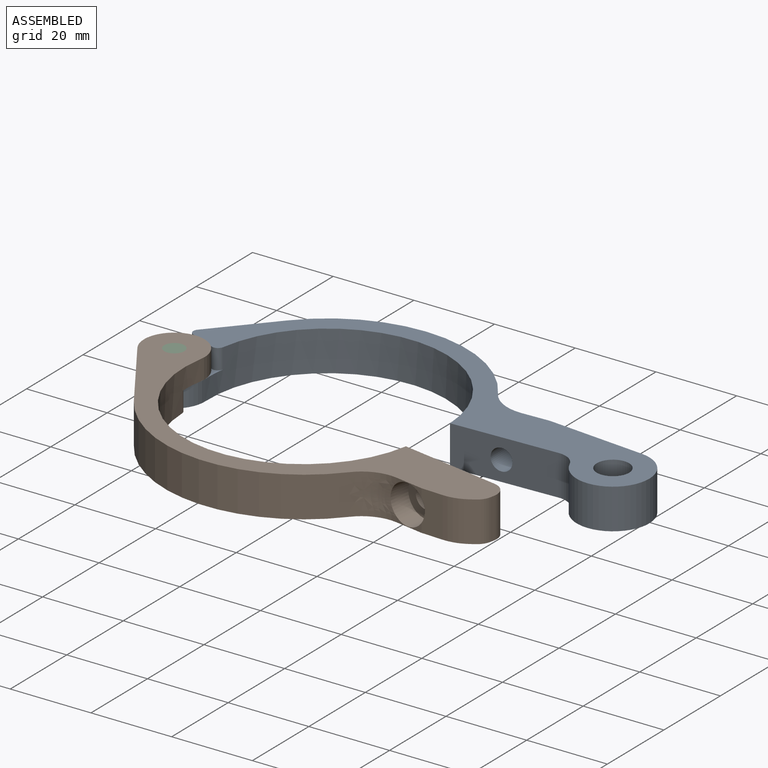
[diagram: assembled view]
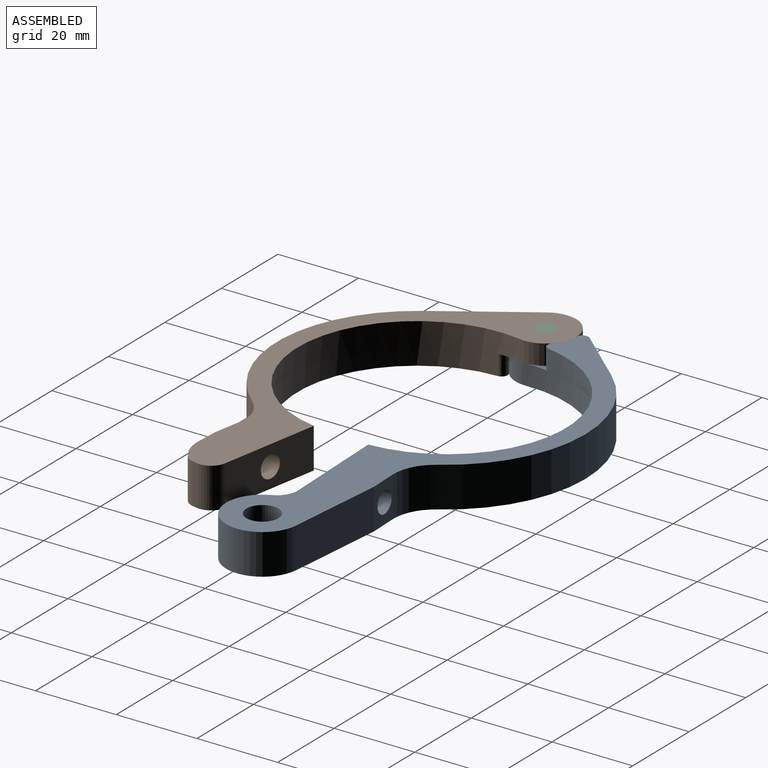
[diagram: assembled view, second angle]
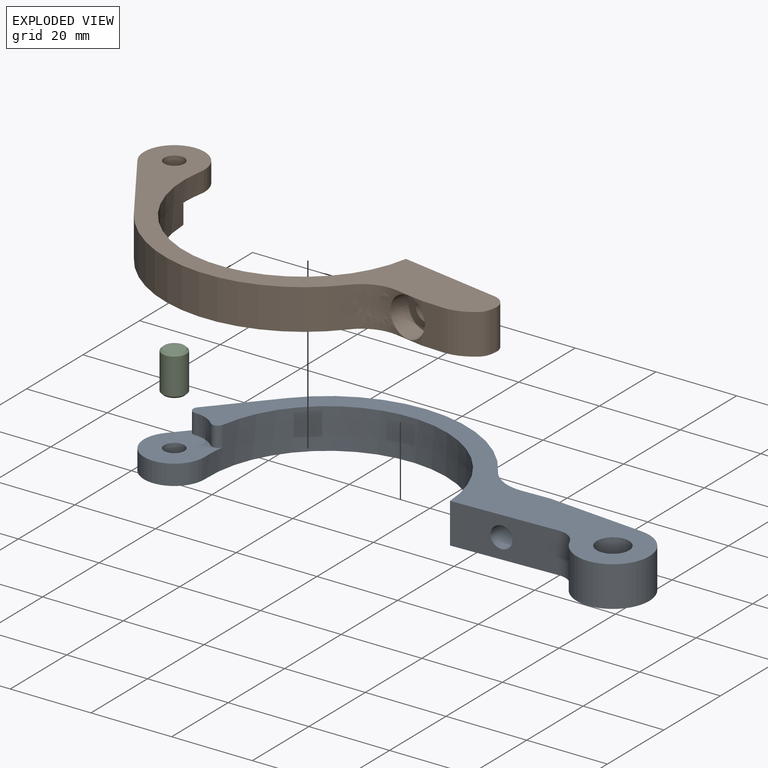
[diagram: exploded view]
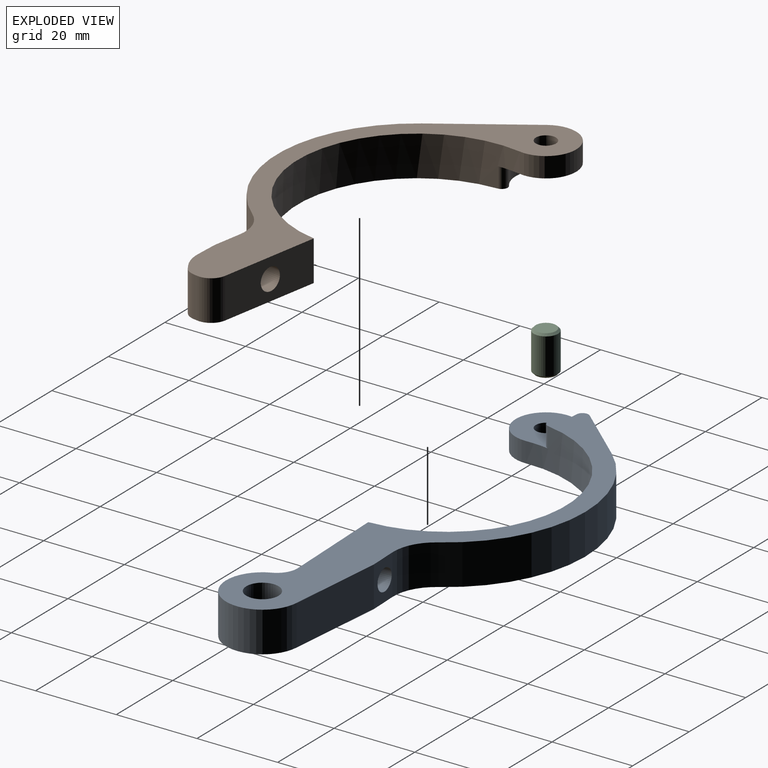
[diagram: exploded view, second angle]
ASSEMBLY  parts=3 mates=2
PART A: 20 faces, bbox 122.6x43.5x10 mm
  f0: plane 18.51x17.5mm, normal (-0.73,0.69,0), area 221.2mm2, adj f1,f4,f6,f12,f13,f16
  f1: cylinder r=7.5mm len=15mm, axis (0,0,-1), area 146.2mm2, adj f0,f2,f12,f16
  f2: cylinder r=29.55mm len=59.1mm, axis (0,0,-1), area 898.2mm2, adj f1,f4,f7,f12,f14,f16
  f3: cylinder r=2.5mm len=5mm, axis (0,0,-1), area 78.5mm2, adj f12,f16
  f4: plane 116.3x43.49mm, normal (0,0,1), area 1047.4mm2, adj f0,f2,f5,f6,f7,f8,f9,f10
  f5: plane 10x6.9mm, normal (0,1,0), area 47mm2, adj f4,f11,f12,f18,f19
  f6: cylinder r=34.58mm len=55.02mm, axis (0,0,-1), area 642.3mm2, adj f0,f4,f12,f19
  f7: plane 26.27x10mm, normal (0,-1,0), area 240.7mm2, adj f2,f4,f8,f12,f18
  f8: cylinder r=5.1mm len=10mm, axis (0,0,-1), area 61.6mm2, adj f4,f7,f9,f12
  f9: cylinder r=9mm len=17.93mm, axis (0,0,-1), area 380.5mm2, adj f4,f8,f12,f17
  f10: cylinder r=4mm len=10mm, axis (0,0,-1), area 251.3mm2, adj f4,f12
  f11: plane 24.08x10mm, normal (0.13,0.99,0), area 242.8mm2, adj f4,f5,f12,f17
  f12: plane 122.55x43.49mm, normal (0,0,-1), area 1211.6mm2, adj f0,f1,f2,f3,f5,f6,f7,f8
  f13: cylinder r=1.5mm len=5mm, axis (0,0,1), area 17.3mm2, adj f0,f4,f15,f16
  f14: cylinder r=1.5mm len=5mm, axis (0,0,1), area 16.5mm2, adj f2,f4,f15,f16
  f15: cylinder r=7.5mm len=5.3mm, axis (0,0,1), area 29.9mm2, adj f4,f13,f14,f16
  f16: plane 17.53x15.58mm, normal (0,0,1), area 164.3mm2, adj f0,f1,f2,f3,f13,f14,f15
  f17: cylinder r=1mm len=10mm, axis (0,0,-1), area 0.1mm2, adj f4,f9,f11,f12
  f18: cylinder r=2.65mm len=12mm, axis (0,1,0), area 199.8mm2, adj f5,f7
  f19: cylinder r=10.5mm len=10mm, axis (0,0,-1), area 109.6mm2, adj f4,f5,f6,f12
PART B: 26 faces, bbox 103.6x42x10.9 mm
  f0: plane 7.19x2.21mm, normal (0,1,0), area 4.6mm2, adj f1,f4,f22,f23
  f1: plane 10x5.41mm, normal (0.13,0.99,0), area 51.2mm2, adj f0,f2,f4,f9,f16,f22
  f2: plane 97.3x34.41mm, normal (0,0,1), area 793.4mm2, adj f1,f3,f5,f6,f9,f10,f11,f12
  f3: plane 25.45x10mm, normal (0,-1,0), area 230.7mm2, adj f2,f4,f5,f15,f20
  f4: plane 103.55x41.99mm, normal (0,0,-1), area 957.7mm2, adj f0,f1,f3,f5,f6,f7,f8,f10
  f5: cylinder r=29.55mm len=59.1mm, axis (0,0,-1), area 898.2mm2, adj f2,f3,f4,f7,f12,f14
  f6: plane 18.51x17.5mm, normal (-0.73,0.69,0), area 221.2mm2, adj f2,f4,f7,f10,f11,f14
  f7: cylinder r=7.5mm len=15mm, axis (0,0,-1), area 146.2mm2, adj f4,f5,f6,f14
  f8: cylinder r=2.5mm len=5mm, axis (0,0,-1), area 78.5mm2, adj f4,f14
  f9: plane 7.19x2.21mm, normal (0,1,0), area 4.6mm2, adj f1,f2,f22,f25
  f10: cylinder r=34.58mm len=55.2mm, axis (0,0,-1), area 645mm2, adj f2,f4,f6,f23,f24,f25
  f11: cylinder r=1.5mm len=5mm, axis (0,0,1), area 17.3mm2, adj f2,f6,f13,f14
  f12: cylinder r=1.5mm len=5mm, axis (0,0,1), area 16.5mm2, adj f2,f5,f13,f14
  f13: cylinder r=7.5mm len=5.3mm, axis (0,0,1), area 29.9mm2, adj f2,f11,f12,f14
  f14: plane 17.53x15.58mm, normal (0,0,1), area 164.3mm2, adj f5,f6,f7,f8,f11,f12,f13
  f15: cylinder r=4mm len=10mm, axis (0,0,1), area 62.8mm2, adj f2,f3,f4,f19
  f16: cylinder r=10mm len=10mm, axis (0,0,1), area 60.2mm2, adj f1,f2,f4,f17
  f17: plane 10x0.88mm, normal (0.67,0.74,0), area 11.8mm2, adj f2,f4,f16,f18
  f18: cylinder r=4mm len=10mm, axis (0,0,1), area 33.6mm2, adj f2,f4,f17,f19
  f19: plane 10x1.05mm, normal (1,0,0), area 10.5mm2, adj f2,f4,f15,f18
  f20: cylinder r=2.75mm len=6.89mm, axis (0,1,0), area 119mm2, adj f3,f21
  f21: plane 9.75x9.75mm, normal (0,1,0), area 50.9mm2, adj f20,f22
  f22: cylinder r=4.88mm len=9.75mm, axis (0,1,0), area 156.2mm2, adj f0,f1,f9,f21,f24
  f23: cylinder r=10mm len=8.68mm, axis (0,0,-1), area 13.8mm2, adj f0,f4,f10,f24
  f24: bspline ~10.05x9.62mm, area 68.6mm2, adj f10,f22,f23,f25
  f25: cylinder r=10mm len=8.68mm, axis (0,0,-1), area 13.8mm2, adj f2,f9,f10,f24
PART C: 5 faces, bbox 10x6x6 mm
  f0: plane 5x5mm, normal (-1,0,0), area 19.6mm2, adj f3
  f1: plane 5x5mm, normal (1,0,0), area 19.6mm2, adj f4
  f2: cylinder r=3mm len=9mm, axis (-1,0,0), area 169.6mm2, adj f3,f4
  f3: cone r=2.5mm half-angle=45deg, axis (1,0,0), area 12.2mm2, adj f0,f2
  f4: cone r=3mm half-angle=45deg, axis (-1,0,0), area 12.2mm2, adj f1,f2
PLACE A rot(axis=(0,0,1),2.1deg) t=(-13.24,-37.33,-37.93)mm
PLACE B rot(axis=(-1,0.09,0),180deg) t=(-13.78,-45.14,-27.93)mm fixed
PLACE C rot(axis=(-0.09,-0.99,-0.09),90.4deg) t=(-50.26,-38.7,-30.86)mm
MATE revolute C.f2 <-> B.f8  axis (0,0,1) through (-50.26,-38.7,-27.93)mm
MATE revolute C.f2 <-> A.f3  axis (0,0,-1) through (-50.26,-38.7,-37.93)mm
